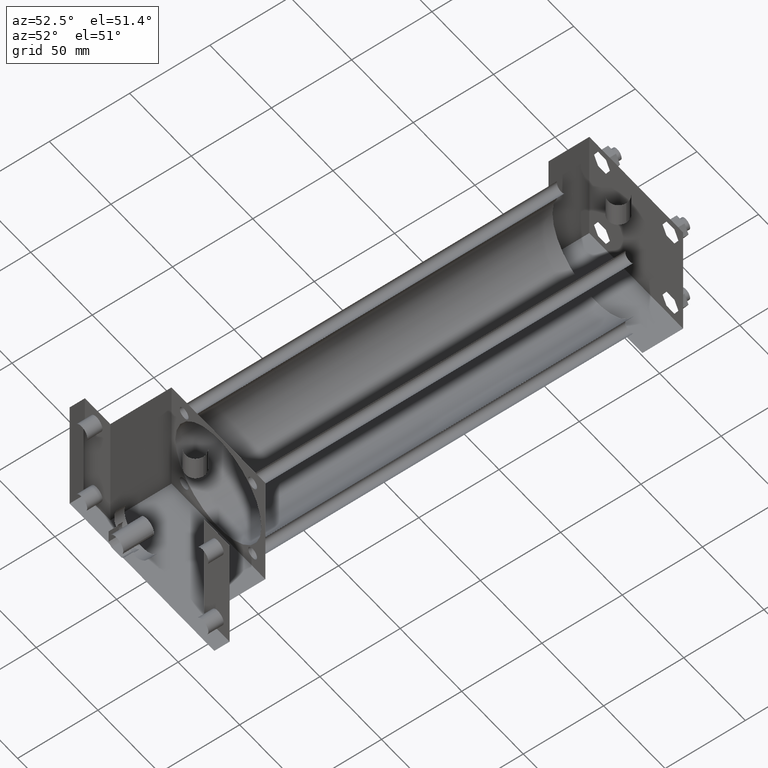
[diagram: clean part render]
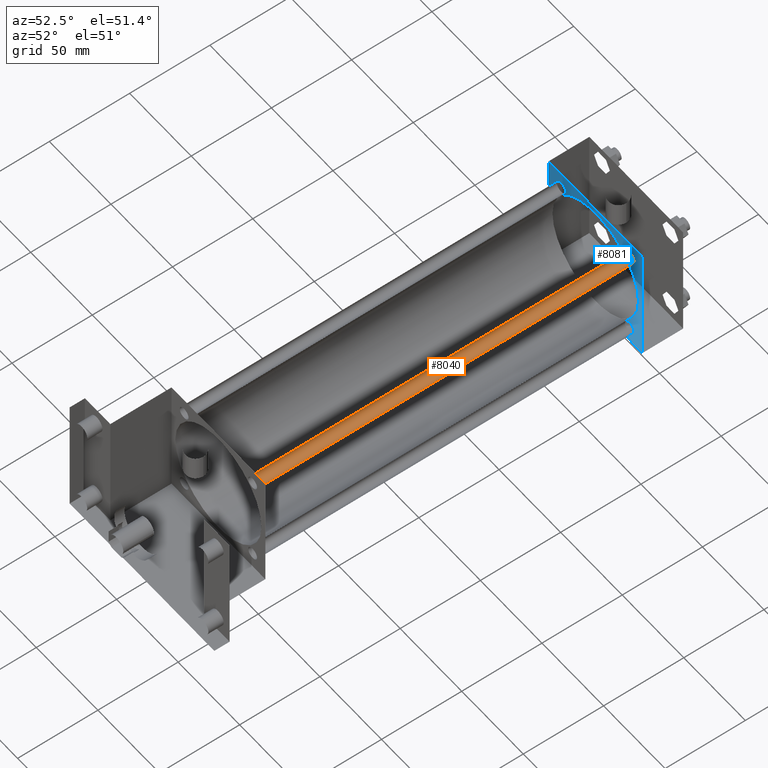
[diagram: same view with the hole feature highlighted: cylindrical wall and planar end face, labeled with their STEP entity ids]
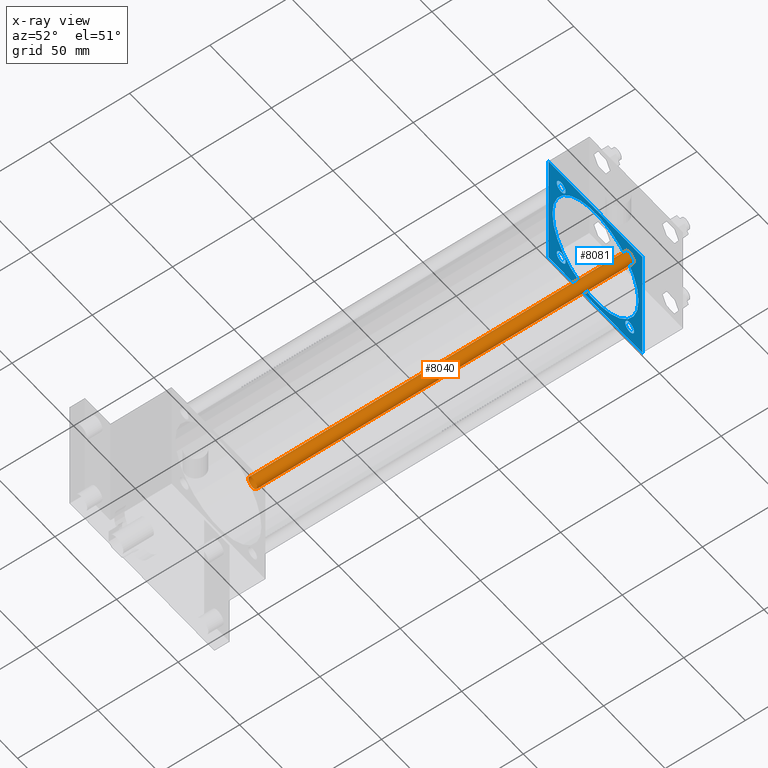
[diagram: x-ray of the same camera — body ghosted, the hole faces saturated]
A machine part, auxiliary view. The highlighted faces form one hole feature of diameter 7.1374 mm: the cylindrical wall (entity #8040, orange) and its adjacent planar end face (entity #8081, blue) — they share a circular edge in the B-rep.
The next image is the same camera in x-ray (body ghosted, the hole faces saturated) — the bore reads through the body.
Wall:
#889=EDGE_CURVE('',#895,#895,#890,.T.);
#890=CIRCLE('',#891,3.568700000E+000);
#891=AXIS2_PLACEMENT_3D('',#892,#893,#894);
#892=CARTESIAN_POINT('',(2.781300000E+001,6.350000000E+001,2.781300000E+001));
#893=DIRECTION('',(0.0E+000,-1.0E+000,0.0E+000));
#894=DIRECTION('',(-1.0E+000,0.0E+000,0.0E+000));
#895=VERTEX_POINT('',#896);
#896=CARTESIAN_POINT('',(2.424430000E+001,6.350000000E+001,2.781300000E+001));
#1097=FACE_OUTER_BOUND('',#1099,.T.);
#1098=FACE_BOUND('',#1100,.T.);
#1099=EDGE_LOOP('',(#1101));
#1100=EDGE_LOOP('',(#1102));
#1101=ORIENTED_EDGE('',*,*,#889,.F.);
#1102=ORIENTED_EDGE('',*,*,#1149,.T.);
#1103=CYLINDRICAL_SURFACE('',#1104,3.568700000E+000);
#1104=AXIS2_PLACEMENT_3D('',#1105,#1106,#1107);
#1105=CARTESIAN_POINT('',(2.781300000E+001,6.350000000E+001,2.781300000E+001));
#1106=DIRECTION('',(0.0E+000,1.0E+000,0.0E+000));
#1107=DIRECTION('',(0.0E+000,0.0E+000,-1.0E+000));
#1149=EDGE_CURVE('',#1155,#1155,#1150,.T.);
#1150=CIRCLE('',#1151,3.568700000E+000);
#1151=AXIS2_PLACEMENT_3D('',#1152,#1153,#1154);
#1152=CARTESIAN_POINT('',(2.781300000E+001,2.984500000E+002,2.781300000E+001));
#1153=DIRECTION('',(0.0E+000,-1.0E+000,0.0E+000));
#1154=DIRECTION('',(-1.0E+000,0.0E+000,0.0E+000));
#1155=VERTEX_POINT('',#1156);
#1156=CARTESIAN_POINT('',(2.424430000E+001,2.984500000E+002,2.781300000E+001));
#8040=ADVANCED_FACE('',(#1097,#1098),#1103,.T.);
End face:
#1067=EDGE_CURVE('',#1073,#1073,#1068,.T.);
#1068=CIRCLE('',#1069,3.492500000E+001);
#1069=AXIS2_PLACEMENT_3D('',#1070,#1071,#1072);
#1070=CARTESIAN_POINT('',(0.000000000E+000,2.984500000E+002,0.000000000E+000));
#1071=DIRECTION('',(0.0E+000,1.0E+000,0.0E+000));
#1072=DIRECTION('',(1.0E+000,0.0E+000,0.0E+000));
#1073=VERTEX_POINT('',#1074);
#1074=CARTESIAN_POINT('',(3.492500000E+001,2.984500000E+002,0.000000000E+000));
#1149=EDGE_CURVE('',#1155,#1155,#1150,.T.);
#1150=CIRCLE('',#1151,3.568700000E+000);
#1151=AXIS2_PLACEMENT_3D('',#1152,#1153,#1154);
#1152=CARTESIAN_POINT('',(2.781300000E+001,2.984500000E+002,2.781300000E+001));
#1153=DIRECTION('',(0.0E+000,-1.0E+000,0.0E+000));
#1154=DIRECTION('',(-1.0E+000,0.0E+000,0.0E+000));
#1155=VERTEX_POINT('',#1156);
#1156=CARTESIAN_POINT('',(2.424430000E+001,2.984500000E+002,2.781300000E+001));
#1157=EDGE_CURVE('',#1163,#1163,#1158,.T.);
#1158=CIRCLE('',#1159,3.568700000E+000);
#1159=AXIS2_PLACEMENT_3D('',#1160,#1161,#1162);
#1160=CARTESIAN_POINT('',(-2.781300000E+001,2.984500000E+002,-2.781300000E+001));
#1161=DIRECTION('',(0.0E+000,1.0E+000,0.0E+000));
#1162=DIRECTION('',(1.0E+000,0.0E+000,0.0E+000));
#1163=VERTEX_POINT('',#1164);
#1164=CARTESIAN_POINT('',(-2.424430000E+001,2.984500000E+002,-2.781300000E+001));
#1173=EDGE_CURVE('',#1179,#1179,#1174,.T.);
#1174=CIRCLE('',#1175,3.568700000E+000);
#1175=AXIS2_PLACEMENT_3D('',#1176,#1177,#1178);
#1176=CARTESIAN_POINT('',(2.781300000E+001,2.984500000E+002,-2.781300000E+001));
#1177=DIRECTION('',(0.0E+000,1.0E+000,0.0E+000));
#1178=DIRECTION('',(1.0E+000,0.0E+000,0.0E+000));
#1179=VERTEX_POINT('',#1180);
#1180=CARTESIAN_POINT('',(3.138170000E+001,2.984500000E+002,-2.781300000E+001));
#1189=EDGE_CURVE('',#1195,#1195,#1190,.T.);
#1190=CIRCLE('',#1191,3.568700000E+000);
#1191=AXIS2_PLACEMENT_3D('',#1192,#1193,#1194);
#1192=CARTESIAN_POINT('',(-2.781300000E+001,2.984500000E+002,2.781300000E+001));
#1193=DIRECTION('',(0.0E+000,1.0E+000,0.0E+000));
#1194=DIRECTION('',(1.0E+000,0.0E+000,0.0E+000));
#1195=VERTEX_POINT('',#1196);
#1196=CARTESIAN_POINT('',(-2.424430000E+001,2.984500000E+002,2.781300000E+001));
#2368=FACE_OUTER_BOUND('',#2374,.T.);
#2369=FACE_BOUND('',#2375,.T.);
#2370=FACE_BOUND('',#2376,.T.);
#2371=FACE_BOUND('',#2377,.T.);
#2372=FACE_BOUND('',#2378,.T.);
#2373=FACE_BOUND('',#2379,.T.);
#2374=EDGE_LOOP('',(#2380));
#2375=EDGE_LOOP('',(#2381));
#2376=EDGE_LOOP('',(#2390));
#2377=EDGE_LOOP('',(#2399));
#2378=EDGE_LOOP('',(#2408,#2409,#2410,#2411));
#2379=EDGE_LOOP('',(#2440));
#2380=ORIENTED_EDGE('',*,*,#1067,.T.);
#2381=ORIENTED_EDGE('',*,*,#1189,.T.);
#2390=ORIENTED_EDGE('',*,*,#1173,.T.);
#2399=ORIENTED_EDGE('',*,*,#1157,.T.);
#2408=ORIENTED_EDGE('',*,*,#2412,.T.);
#2409=ORIENTED_EDGE('',*,*,#2421,.T.);
#2410=ORIENTED_EDGE('',*,*,#2428,.T.);
#2411=ORIENTED_EDGE('',*,*,#2435,.T.);
#2412=EDGE_CURVE('',#2417,#2418,#2413,.T.);
#2413=LINE('',#2414,#2415);
#2414=CARTESIAN_POINT('',(-3.810000000E+001,2.984500000E+002,-3.810000000E+001));
#2415=VECTOR('',#2416,1.0E+000);
#2416=DIRECTION('',(1.0E+000,0.0E+000,0.0E+000));
#2417=VERTEX_POINT('',#2419);
#2418=VERTEX_POINT('',#2420);
#2419=CARTESIAN_POINT('',(-3.810000000E+001,2.984500000E+002,-3.810000000E+001));
#2420=CARTESIAN_POINT('',(3.810000000E+001,2.984500000E+002,-3.810000000E+001));
#2421=EDGE_CURVE('',#2418,#2426,#2422,.T.);
#2422=LINE('',#2423,#2424);
#2423=CARTESIAN_POINT('',(3.810000000E+001,2.984500000E+002,-3.810000000E+001));
#2424=VECTOR('',#2425,1.0E+000);
#2425=DIRECTION('',(0.0E+000,0.0E+000,1.0E+000));
#2426=VERTEX_POINT('',#2427);
#2427=CARTESIAN_POINT('',(3.810000000E+001,2.984500000E+002,3.810000000E+001));
#2428=EDGE_CURVE('',#2426,#2433,#2429,.T.);
#2429=LINE('',#2430,#2431);
#2430=CARTESIAN_POINT('',(3.810000000E+001,2.984500000E+002,3.810000000E+001));
#2431=VECTOR('',#2432,1.0E+000);
#2432=DIRECTION('',(-1.0E+000,0.0E+000,0.0E+000));
#2433=VERTEX_POINT('',#2434);
#2434=CARTESIAN_POINT('',(-3.810000000E+001,2.984500000E+002,3.810000000E+001));
#2435=EDGE_CURVE('',#2433,#2417,#2436,.T.);
#2436=LINE('',#2437,#2438);
#2437=CARTESIAN_POINT('',(-3.810000000E+001,2.984500000E+002,3.810000000E+001));
#2438=VECTOR('',#2439,1.0E+000);
#2439=DIRECTION('',(0.0E+000,0.0E+000,-1.0E+000));
#2440=ORIENTED_EDGE('',*,*,#1149,.F.);
#2449=PLANE('',#2450);
#2450=AXIS2_PLACEMENT_3D('',#2451,#2452,#2453);
#2451=CARTESIAN_POINT('',(-3.810000000E+001,2.984500000E+002,-3.810000000E+001));
#2452=DIRECTION('',(0.0E+000,1.0E+000,0.0E+000));
#2453=DIRECTION('',(0.0E+000,0.0E+000,1.0E+000));
#8081=ADVANCED_FACE('',(#2368,#2369,#2370,#2371,#2372,#2373),#2449,.F.);